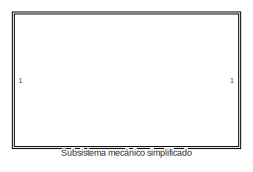
[diagram: root canvas - part 1/2, top center region]
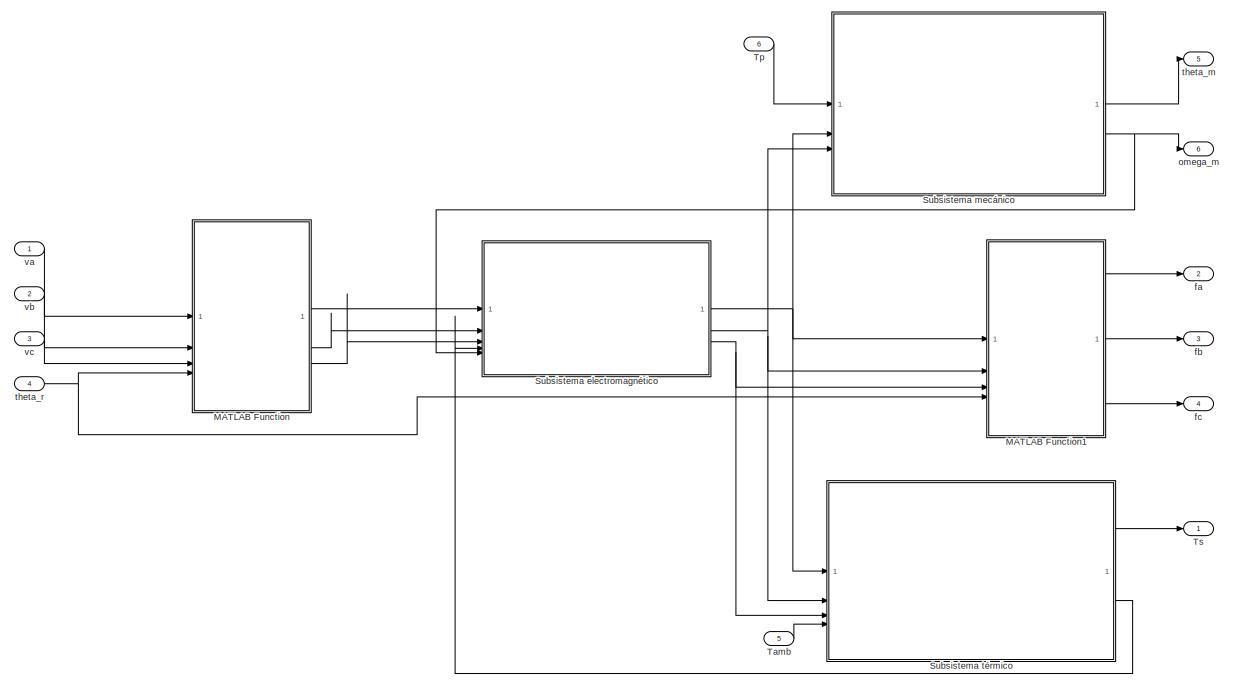
[diagram: root canvas - part 2/2, full width, bottom band]
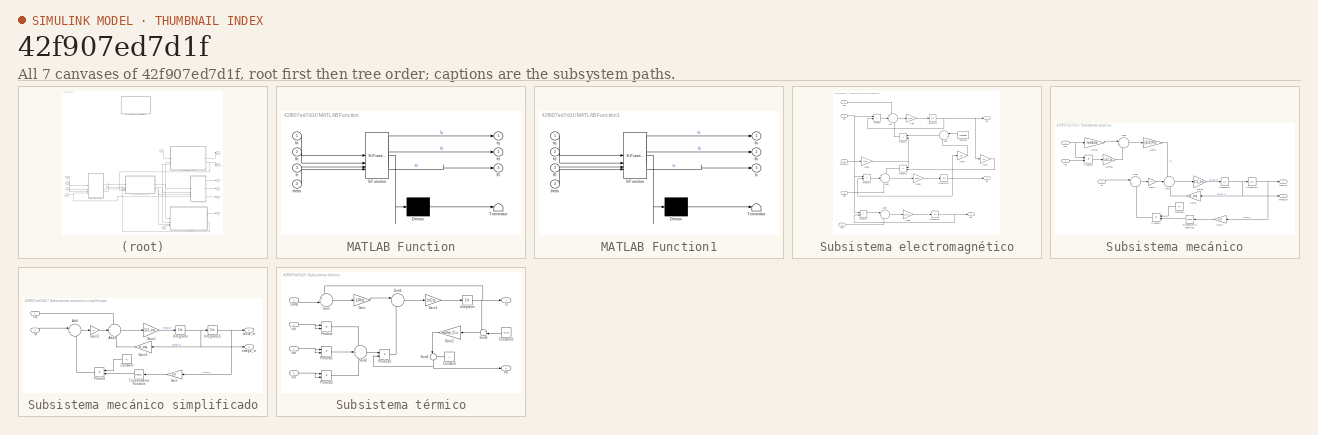
[diagram: thumbnail index - all 7 canvases of the model, root first then tree order]
MODEL slx_42f907ed7d1f
KIND model
CONFIG AbsTol = auto
CONFIG EnableMultiTasking = off
CONFIG FixedStep = auto
CONFIG MaxStep = auto
CONFIG MinStep = auto
CONFIG RelTol = 1e-3
CONFIG SampleTimeConstraint = Unconstrained
CONFIG SolverName = VariableStepAuto
CONFIG StartTime = 0.0
CONFIG StopTime = 10.0
BLOCK [SubSystem] MATLAB Function
  ErrorFcn = Stateflow.Translate.translate
  LibrarySourceBlock = simulink/User-Defined\nFunctions/MATLAB Function
  PermitHierarchicalResolution = ExplicitOnly
  SFBlockType = MATLAB Function
  TreatAsAtomicUnit = on
BLOCK [Demux] MATLAB Function/ Demux 
  Outputs = 1
BLOCK [S-Function] MATLAB Function/ SFunction 
  EnableBusSupport = off
  FunctionName = sf_sfun
  PortCounts = [4 4]
  SFcnIsStateOwnerBlock = off
  SFunctionDeploymentMode = off
  Tag = Stateflow S-Function 2
BLOCK [Terminator] MATLAB Function/ Terminator 
BLOCK [Outport] MATLAB Function/f0
  Port = 3
BLOCK [Inport] MATLAB Function/fa
BLOCK [Inport] MATLAB Function/fb
  Port = 2
BLOCK [Inport] MATLAB Function/fc
  Port = 3
BLOCK [Outport] MATLAB Function/fd
  Port = 2
BLOCK [Outport] MATLAB Function/fq
BLOCK [Inport] MATLAB Function/theta
  Port = 4
BLOCK [SubSystem] MATLAB Function1
  ErrorFcn = Stateflow.Translate.translate
  LibrarySourceBlock = simulink/User-Defined\nFunctions/MATLAB Function
  PermitHierarchicalResolution = ExplicitOnly
  SFBlockType = MATLAB Function
  TreatAsAtomicUnit = on
BLOCK [Demux] MATLAB Function1/ Demux 
  Outputs = 1
BLOCK [S-Function] MATLAB Function1/ SFunction 
  EnableBusSupport = off
  FunctionName = sf_sfun
  PortCounts = [4 4]
  SFcnIsStateOwnerBlock = off
  SFunctionDeploymentMode = off
  Tag = Stateflow S-Function 1
BLOCK [Terminator] MATLAB Function1/ Terminator 
BLOCK [Inport] MATLAB Function1/f0
  Port = 3
BLOCK [Outport] MATLAB Function1/fa
BLOCK [Outport] MATLAB Function1/fb
  Port = 2
BLOCK [Outport] MATLAB Function1/fc
  Port = 3
BLOCK [Inport] MATLAB Function1/fd
  Port = 2
BLOCK [Inport] MATLAB Function1/fq
BLOCK [Inport] MATLAB Function1/theta
  Port = 4
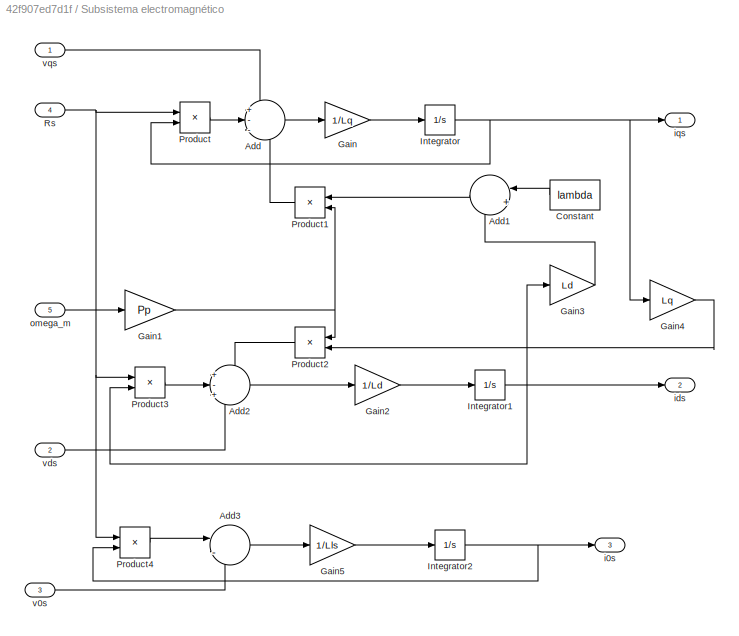
BLOCK [SubSystem] Subsistema electromagnético
BLOCK [Sum] Subsistema electromagnético/Add
  Inputs = +--
BLOCK [Sum] Subsistema electromagnético/Add1
  Inputs = |++
BLOCK [Sum] Subsistema electromagnético/Add2
  Inputs = +-+
BLOCK [Sum] Subsistema electromagnético/Add3
  Inputs = |-+
BLOCK [Constant] Subsistema electromagnético/Constant
  Value = lambda
BLOCK [Gain] Subsistema electromagnético/Gain
  Gain = 1/Lq
BLOCK [Gain] Subsistema electromagnético/Gain1
  Gain = Pp
BLOCK [Gain] Subsistema electromagnético/Gain2
  Gain = 1/Ld
BLOCK [Gain] Subsistema electromagnético/Gain3
  Gain = Ld
BLOCK [Gain] Subsistema electromagnético/Gain4
  Gain = Lq
BLOCK [Gain] Subsistema electromagnético/Gain5
  Gain = 1/Lls
BLOCK [Integrator] Subsistema electromagnético/Integrator
BLOCK [Integrator] Subsistema electromagnético/Integrator1
BLOCK [Integrator] Subsistema electromagnético/Integrator2
BLOCK [Product] Subsistema electromagnético/Product
BLOCK [Product] Subsistema electromagnético/Product1
BLOCK [Product] Subsistema electromagnético/Product2
BLOCK [Product] Subsistema electromagnético/Product3
BLOCK [Product] Subsistema electromagnético/Product4
BLOCK [Inport] Subsistema electromagnético/Rs
  Port = 4
BLOCK [Outport] Subsistema electromagnético/i0s
  Port = 3
BLOCK [Outport] Subsistema electromagnético/ids
  Port = 2
BLOCK [Outport] Subsistema electromagnético/iqs
BLOCK [Inport] Subsistema electromagnético/omega_m
  Port = 5
BLOCK [Inport] Subsistema electromagnético/v0s
  Port = 3
BLOCK [Inport] Subsistema electromagnético/vds
  Port = 2
BLOCK [Inport] Subsistema electromagnético/vqs
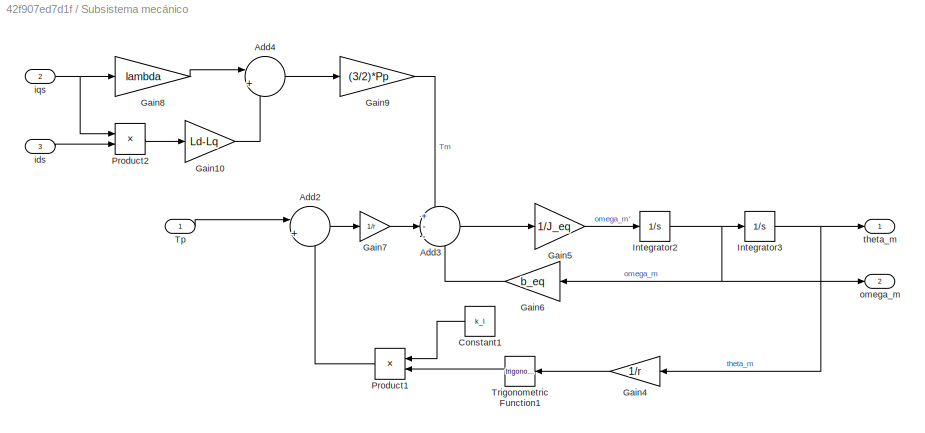
BLOCK [SubSystem] Subsistema mecánico
BLOCK [SubSystem] Subsistema mecánico simplificado
BLOCK [Sum] Subsistema mecánico simplificado/Add
  Inputs = |++
BLOCK [Sum] Subsistema mecánico simplificado/Add1
  Inputs = +--
BLOCK [Constant] Subsistema mecánico simplificado/Constant
  Value = k_l
BLOCK [Gain] Subsistema mecánico simplificado/Gain
  Gain = 1/r
BLOCK [Gain] Subsistema mecánico simplificado/Gain1
  Gain = 1/J_eq
BLOCK [Gain] Subsistema mecánico simplificado/Gain2
  Gain = b_eq
BLOCK [Gain] Subsistema mecánico simplificado/Gain3
  Gain = 1/r
BLOCK [Integrator] Subsistema mecánico simplificado/Integrator
BLOCK [Integrator] Subsistema mecánico simplificado/Integrator1
BLOCK [Product] Subsistema mecánico simplificado/Product
BLOCK [Inport] Subsistema mecánico simplificado/Tm
BLOCK [Inport] Subsistema mecánico simplificado/Tp
  Port = 2
BLOCK [Trigonometry] Subsistema mecánico simplificado/Trigonometric Function
BLOCK [Outport] Subsistema mecánico simplificado/omega_m
  Port = 2
BLOCK [Outport] Subsistema mecánico simplificado/theta_m
BLOCK [Sum] Subsistema mecánico/Add2
  Inputs = |++
BLOCK [Sum] Subsistema mecánico/Add3
  Inputs = +--
BLOCK [Sum] Subsistema mecánico/Add4
  Inputs = |++
BLOCK [Constant] Subsistema mecánico/Constant1
  Value = k_l
BLOCK [Gain] Subsistema mecánico/Gain10
  Gain = Ld-Lq
BLOCK [Gain] Subsistema mecánico/Gain4
  Gain = 1/r
BLOCK [Gain] Subsistema mecánico/Gain5
  Gain = 1/J_eq
BLOCK [Gain] Subsistema mecánico/Gain6
  Gain = b_eq
BLOCK [Gain] Subsistema mecánico/Gain7
  Gain = 1/r
BLOCK [Gain] Subsistema mecánico/Gain8
  Gain = lambda
BLOCK [Gain] Subsistema mecánico/Gain9
  Gain = (3/2)*Pp
BLOCK [Integrator] Subsistema mecánico/Integrator2
BLOCK [Integrator] Subsistema mecánico/Integrator3
BLOCK [Product] Subsistema mecánico/Product1
BLOCK [Product] Subsistema mecánico/Product2
BLOCK [Inport] Subsistema mecánico/Tp
BLOCK [Trigonometry] Subsistema mecánico/Trigonometric Function1
BLOCK [Inport] Subsistema mecánico/ids
  Port = 3
BLOCK [Inport] Subsistema mecánico/iqs
  Port = 2
BLOCK [Outport] Subsistema mecánico/omega_m
  Port = 2
BLOCK [Outport] Subsistema mecánico/theta_m
BLOCK [SubSystem] Subsistema térmico
BLOCK [Constant] Subsistema térmico/Constant
BLOCK [Constant] Subsistema térmico/Constant1
  Value = Ts_ref
BLOCK [Gain] Subsistema térmico/Gain
  Gain = 1/Rts
BLOCK [Gain] Subsistema térmico/Gain1
  Gain = 1/Cts
BLOCK [Gain] Subsistema térmico/Gain2
  Gain = alpha_Cu
BLOCK [Integrator] Subsistema térmico/Integrator
BLOCK [Product] Subsistema térmico/Product
BLOCK [Product] Subsistema térmico/Product1
BLOCK [Product] Subsistema térmico/Product2
BLOCK [Product] Subsistema térmico/Product3
BLOCK [Outport] Subsistema térmico/Rs
  Port = 2
BLOCK [Sum] Subsistema térmico/Sum
  Inputs = +-|
BLOCK [Sum] Subsistema térmico/Sum1
  Inputs = |-+
BLOCK [Sum] Subsistema térmico/Sum2
  Inputs = +++
BLOCK [Sum] Subsistema térmico/Sum3
  Inputs = |++
  NameLocation = right
BLOCK [Sum] Subsistema térmico/Sum4
  Inputs = +-|
BLOCK [Inport] Subsistema térmico/Tamb
  Port = 4
BLOCK [Outport] Subsistema térmico/Ts
BLOCK [Inport] Subsistema térmico/i0s
  Port = 3
BLOCK [Inport] Subsistema térmico/ids
  Port = 2
BLOCK [Inport] Subsistema térmico/iqs
BLOCK [Inport] Tamb
  Port = 5
BLOCK [Inport] Tp
  Port = 6
BLOCK [Outport] Ts
BLOCK [Outport] fa
  Port = 2
BLOCK [Outport] fb
  Port = 3
BLOCK [Outport] fc
  Port = 4
BLOCK [Outport] omega_m
  Port = 6
BLOCK [Outport] theta_m
  Port = 5
BLOCK [Inport] theta_r
  Port = 4
BLOCK [Inport] va
BLOCK [Inport] vb
  Port = 2
BLOCK [Inport] vc
  Port = 3
LINE MATLAB Function1:1 -> fa:1
LINE MATLAB Function1:2 -> fb:1
LINE MATLAB Function1:3 -> fc:1
LINE MATLAB Function:1 -> Subsistema electromagnético:1
LINE MATLAB Function:2 -> Subsistema electromagnético:2
LINE MATLAB Function:3 -> Subsistema electromagnético:3
LINE Subsistema electromagnético/Add1:1 -> Subsistema electromagnético/Product1:1
LINE Subsistema electromagnético/Add2:1 -> Subsistema electromagnético/Gain2:1
LINE Subsistema electromagnético/Add3:1 -> Subsistema electromagnético/Gain5:1
LINE Subsistema electromagnético/Add:1 -> Subsistema electromagnético/Gain:1
LINE Subsistema electromagnético/Constant:1 -> Subsistema electromagnético/Add1:1
NET Subsistema electromagnético/Gain1:1 -> Subsistema electromagnético/Product1:2, Subsistema electromagnético/Product2:1
LINE Subsistema electromagnético/Gain2:1 -> Subsistema electromagnético/Integrator1:1
LINE Subsistema electromagnético/Gain3:1 -> Subsistema electromagnético/Add1:2
LINE Subsistema electromagnético/Gain4:1 -> Subsistema electromagnético/Product2:2
LINE Subsistema electromagnético/Gain5:1 -> Subsistema electromagnético/Integrator2:1
LINE Subsistema electromagnético/Gain:1 -> Subsistema electromagnético/Integrator:1
NET Subsistema electromagnético/Integrator1:1 -> Subsistema electromagnético/Gain3:1, Subsistema electromagnético/Product3:2, Subsistema electromagnético/ids:1
NET Subsistema electromagnético/Integrator2:1 -> Subsistema electromagnético/Product4:2, Subsistema electromagnético/i0s:1
NET Subsistema electromagnético/Integrator:1 -> Subsistema electromagnético/Gain4:1, Subsistema electromagnético/Product:2, Subsistema electromagnético/iqs:1
LINE Subsistema electromagnético/Product1:1 -> Subsistema electromagnético/Add:3
LINE Subsistema electromagnético/Product2:1 -> Subsistema electromagnético/Add2:1
LINE Subsistema electromagnético/Product3:1 -> Subsistema electromagnético/Add2:2
LINE Subsistema electromagnético/Product4:1 -> Subsistema electromagnético/Add3:1
LINE Subsistema electromagnético/Product:1 -> Subsistema electromagnético/Add:2
NET Subsistema electromagnético/Rs:1 -> Subsistema electromagnético/Product3:1, Subsistema electromagnético/Product4:1, Subsistema electromagnético/Product:1
LINE Subsistema electromagnético/omega_m:1 -> Subsistema electromagnético/Gain1:1
LINE Subsistema electromagnético/v0s:1 -> Subsistema electromagnético/Add3:2
LINE Subsistema electromagnético/vds:1 -> Subsistema electromagnético/Add2:3
LINE Subsistema electromagnético/vqs:1 -> Subsistema electromagnético/Add:1
NET Subsistema electromagnético:1 -> MATLAB Function1:1, Subsistema mecánico:2, Subsistema térmico:1
NET Subsistema electromagnético:2 -> MATLAB Function1:2, Subsistema mecánico:3, Subsistema térmico:2
NET Subsistema electromagnético:3 -> MATLAB Function1:3, Subsistema térmico:3
LINE Subsistema mecánico simplificado/Add1:1 -> Subsistema mecánico simplificado/Gain1:1
LINE Subsistema mecánico simplificado/Add:1 -> Subsistema mecánico simplificado/Gain3:1
LINE Subsistema mecánico simplificado/Constant:1 -> Subsistema mecánico simplificado/Product:1
LINE Subsistema mecánico simplificado/Gain1:1 -> Subsistema mecánico simplificado/Integrator:1
LINE Subsistema mecánico simplificado/Gain2:1 -> Subsistema mecánico simplificado/Add1:3
LINE Subsistema mecánico simplificado/Gain3:1 -> Subsistema mecánico simplificado/Add1:2
LINE Subsistema mecánico simplificado/Gain:1 -> Subsistema mecánico simplificado/Trigonometric Function:1
NET Subsistema mecánico simplificado/Integrator1:1 -> Subsistema mecánico simplificado/Gain:1, Subsistema mecánico simplificado/theta_m:1
NET Subsistema mecánico simplificado/Integrator:1 -> Subsistema mecánico simplificado/Gain2:1, Subsistema mecánico simplificado/Integrator1:1, Subsistema mecánico simplificado/omega_m:1
LINE Subsistema mecánico simplificado/Product:1 -> Subsistema mecánico simplificado/Add:2
LINE Subsistema mecánico simplificado/Tm:1 -> Subsistema mecánico simplificado/Add1:1
LINE Subsistema mecánico simplificado/Tp:1 -> Subsistema mecánico simplificado/Add:1
LINE Subsistema mecánico simplificado/Trigonometric Function:1 -> Subsistema mecánico simplificado/Product:2
LINE Subsistema mecánico/Add2:1 -> Subsistema mecánico/Gain7:1
LINE Subsistema mecánico/Add3:1 -> Subsistema mecánico/Gain5:1
LINE Subsistema mecánico/Add4:1 -> Subsistema mecánico/Gain9:1
LINE Subsistema mecánico/Constant1:1 -> Subsistema mecánico/Product1:1
LINE Subsistema mecánico/Gain10:1 -> Subsistema mecánico/Add4:2
LINE Subsistema mecánico/Gain4:1 -> Subsistema mecánico/Trigonometric Function1:1
LINE Subsistema mecánico/Gain5:1 -> Subsistema mecánico/Integrator2:1
LINE Subsistema mecánico/Gain6:1 -> Subsistema mecánico/Add3:3
LINE Subsistema mecánico/Gain7:1 -> Subsistema mecánico/Add3:2
LINE Subsistema mecánico/Gain8:1 -> Subsistema mecánico/Add4:1
LINE Subsistema mecánico/Gain9:1 -> Subsistema mecánico/Add3:1
NET Subsistema mecánico/Integrator2:1 -> Subsistema mecánico/Gain6:1, Subsistema mecánico/Integrator3:1, Subsistema mecánico/omega_m:1
NET Subsistema mecánico/Integrator3:1 -> Subsistema mecánico/Gain4:1, Subsistema mecánico/theta_m:1
LINE Subsistema mecánico/Product1:1 -> Subsistema mecánico/Add2:2
LINE Subsistema mecánico/Product2:1 -> Subsistema mecánico/Gain10:1
LINE Subsistema mecánico/Tp:1 -> Subsistema mecánico/Add2:1
LINE Subsistema mecánico/Trigonometric Function1:1 -> Subsistema mecánico/Product1:2
LINE Subsistema mecánico/ids:1 -> Subsistema mecánico/Product2:2
NET Subsistema mecánico/iqs:1 -> Subsistema mecánico/Gain8:1, Subsistema mecánico/Product2:1
LINE Subsistema mecánico:1 -> theta_m:1
NET Subsistema mecánico:2 -> Subsistema electromagnético:5, omega_m:1
LINE Subsistema térmico/Constant1:1 -> Subsistema térmico/Sum4:2
LINE Subsistema térmico/Constant:1 -> Subsistema térmico/Sum3:2
LINE Subsistema térmico/Gain1:1 -> Subsistema térmico/Integrator:1
LINE Subsistema térmico/Gain2:1 -> Subsistema térmico/Sum3:1
LINE Subsistema térmico/Gain:1 -> Subsistema térmico/Sum1:1
NET Subsistema térmico/Integrator:1 -> Subsistema térmico/Sum4:1, Subsistema térmico/Sum:1, Subsistema térmico/Ts:1
LINE Subsistema térmico/Product1:1 -> Subsistema térmico/Sum2:2
LINE Subsistema térmico/Product2:1 -> Subsistema térmico/Sum2:3
LINE Subsistema térmico/Product3:1 -> Subsistema térmico/Sum1:2
LINE Subsistema térmico/Product:1 -> Subsistema térmico/Sum2:1
LINE Subsistema térmico/Sum1:1 -> Subsistema térmico/Gain1:1
LINE Subsistema térmico/Sum2:1 -> Subsistema térmico/Product3:1
NET Subsistema térmico/Sum3:1 -> Subsistema térmico/Product3:2, Subsistema térmico/Rs:1
LINE Subsistema térmico/Sum4:1 -> Subsistema térmico/Gain2:1
LINE Subsistema térmico/Sum:1 -> Subsistema térmico/Gain:1
LINE Subsistema térmico/Tamb:1 -> Subsistema térmico/Sum:2
NET Subsistema térmico/i0s:1 -> Subsistema térmico/Product2:1, Subsistema térmico/Product2:2
NET Subsistema térmico/ids:1 -> Subsistema térmico/Product1:1, Subsistema térmico/Product1:2
NET Subsistema térmico/iqs:1 -> Subsistema térmico/Product:1, Subsistema térmico/Product:2
LINE Subsistema térmico:1 -> Ts:1
LINE Subsistema térmico:2 -> Subsistema electromagnético:4
LINE Tamb:1 -> Subsistema térmico:4
LINE Tp:1 -> Subsistema mecánico:1
NET theta_r:1 -> MATLAB Function1:4, MATLAB Function:4
LINE va:1 -> MATLAB Function:1
LINE vb:1 -> MATLAB Function:2
LINE vc:1 -> MATLAB Function:3
note: NET lines group one-source signal fan-out (src -> all destinations, sorted); 1:1 wires keep LINE
CHART MATLAB Function1 states=1 transitions=1
  STATE_LABEL 'eML_blk_kernel()'
  STATE_LABEL 'SCRIPT:\nfunction [fa,fb,fc] = TI_Park(fq,fd,f0,theta)\n\nf = (2/3)*[     cos(theta)              sin(theta)         1;\n           cos(theta - (2*pi)/3)   sin(theta - (2*pi)/3)   1;\n           cos(theta + (2*pi)/3)   sin(theta + (2*pi)/3)   1];\n\n[fa;fb;fc] = f*[fq;fd;f0];\n\n'
CHART MATLAB Function states=1 transitions=1
  STATE_LABEL 'eML_blk_kernel()'
  STATE_LABEL 'SCRIPT:\nfunction [fq,fd,f0] = TD_Park(fa,fb,fc,theta)\n\nf = (2/3)*[cos(theta)  cos(theta - (2*pi)/3)   cos(theta + (2*pi)/3);\n           sin(theta)  sin(theta - (2*pi)/3)   sin(theta + (2*pi)/3);\n              1/2              1/2                     1/2         ];\n\n[fq;fd;f0] = f*[fa;fb;fc];\n\n'
CHART  states=0 transitions=0
CHART  states=0 transitions=0
